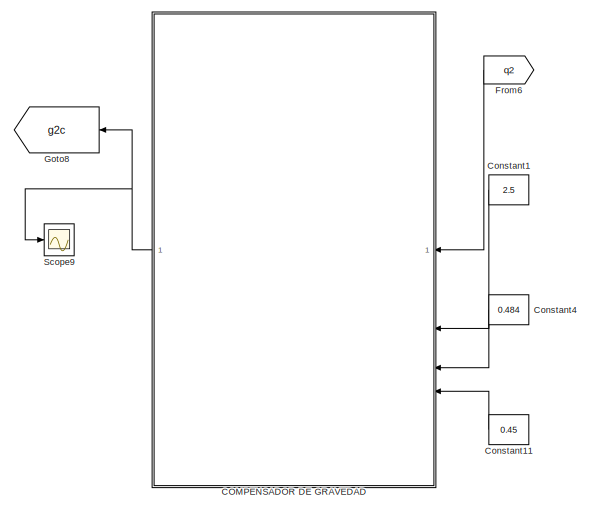
[diagram: root canvas - part 1/4, top left region]
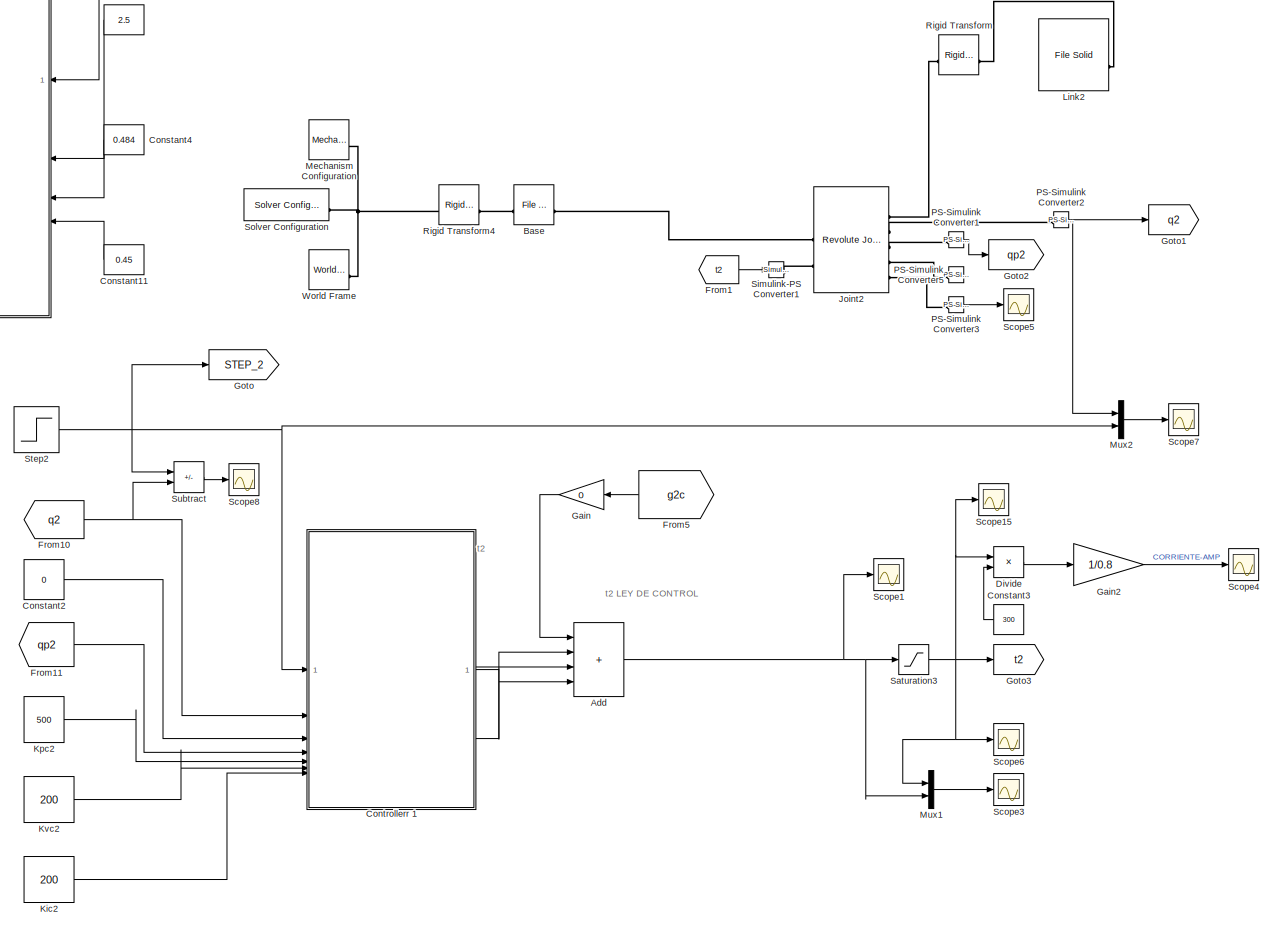
[diagram: root canvas - part 2/4, top left region]
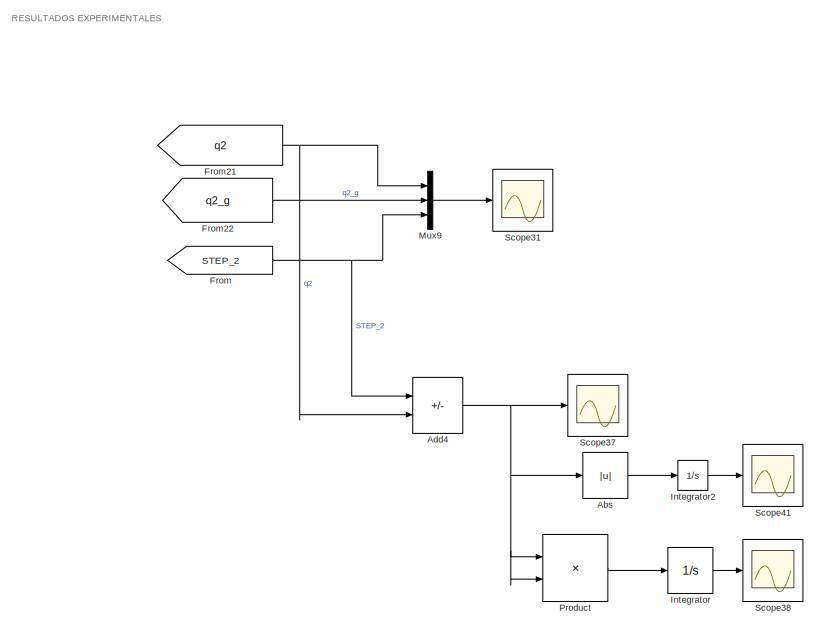
[diagram: root canvas - part 3/4, middle right region]
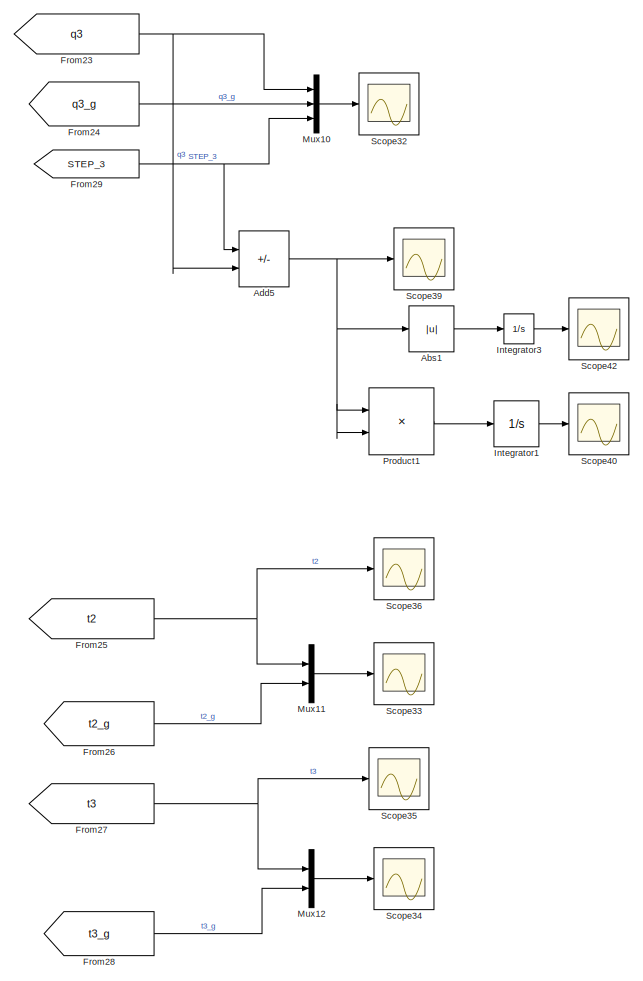
[diagram: root canvas - part 4/4, bottom right region]
MODEL slx_f197908102e9
KIND model
CONFIG AbsTol = auto
CONFIG EnableMultiTasking = off
CONFIG FixedStep = auto
CONFIG MaxStep = auto
CONFIG MinStep = auto
CONFIG RelTol = 1e-3
CONFIG SampleTimeConstraint = Unconstrained
CONFIG SolverName = VariableStepAuto
CONFIG StartTime = 0.0
CONFIG StopTime = 5
BLOCK [Abs] Abs
  SaturateOnIntegerOverflow = off
BLOCK [Abs] Abs1
  SaturateOnIntegerOverflow = off
BLOCK [Sum] Add
  IconShape = rectangular
  Inputs = ++++
BLOCK [Sum] Add4
  IconShape = rectangular
  Inputs = +-
BLOCK [Sum] Add5
  IconShape = rectangular
  Inputs = +-
BLOCK [Reference] Base  REF=sm_lib/Body Elements/File Solid
  SourceBlock = sm_lib/Body Elements/File Solid
  SourceType = File Solid
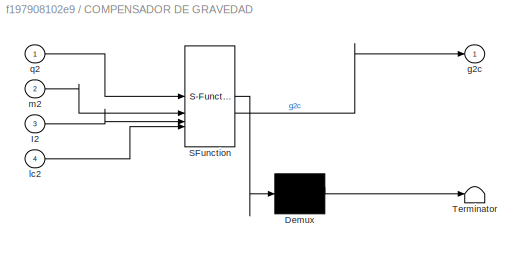
BLOCK [SubSystem] COMPENSADOR DE GRAVEDAD
  ErrorFcn = Stateflow.Translate.translate
  PermitHierarchicalResolution = ExplicitOnly
  SFBlockType = MATLAB Function
  TreatAsAtomicUnit = on
BLOCK [Demux] COMPENSADOR DE GRAVEDAD/ Demux 
  Outputs = 1
BLOCK [S-Function] COMPENSADOR DE GRAVEDAD/ SFunction 
  EnableBusSupport = on
  FunctionName = sf_sfun
  PortCounts = [4 2]
  SFcnIsStateOwnerBlock = off
  SFunctionDeploymentMode = off
  Tag = Stateflow S-Function 1
BLOCK [Terminator] COMPENSADOR DE GRAVEDAD/ Terminator 
BLOCK [Inport] COMPENSADOR DE GRAVEDAD/I2
  Port = 3
BLOCK [Outport] COMPENSADOR DE GRAVEDAD/g2c
  VectorParamsAs1DForOutWhenUnconnected = off
BLOCK [Inport] COMPENSADOR DE GRAVEDAD/lc2
  Port = 4
BLOCK [Inport] COMPENSADOR DE GRAVEDAD/m2
  Port = 2
BLOCK [Inport] COMPENSADOR DE GRAVEDAD/q2
BLOCK [Constant] Constant1
  Value = 2.5
BLOCK [Constant] Constant11
  Value = 0.45
BLOCK [Constant] Constant2
  Value = 0
BLOCK [Constant] Constant3
  Value = 300
BLOCK [Constant] Constant4
  Value = 0.484
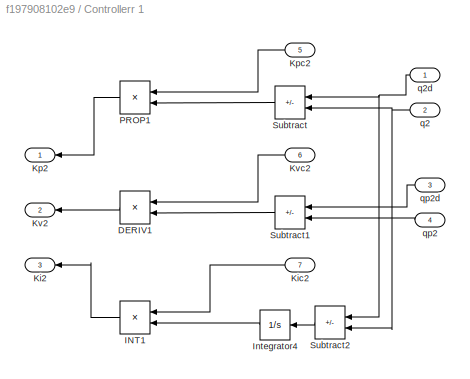
BLOCK [SubSystem] Controllerr 1
BLOCK [Product] Controllerr 1/DERIV1
BLOCK [Product] Controllerr 1/INT1
BLOCK [Integrator] Controllerr 1/Integrator4
BLOCK [Outport] Controllerr 1/Ki2
  Port = 3
  VectorParamsAs1DForOutWhenUnconnected = off
BLOCK [Inport] Controllerr 1/Kic2
  Port = 7
BLOCK [Outport] Controllerr 1/Kp2
  VectorParamsAs1DForOutWhenUnconnected = off
BLOCK [Inport] Controllerr 1/Kpc2
  Port = 5
BLOCK [Outport] Controllerr 1/Kv2
  Port = 2
  VectorParamsAs1DForOutWhenUnconnected = off
BLOCK [Inport] Controllerr 1/Kvc2
  Port = 6
BLOCK [Product] Controllerr 1/PROP1
BLOCK [Sum] Controllerr 1/Subtract
  IconShape = rectangular
  Inputs = +-
BLOCK [Sum] Controllerr 1/Subtract1
  IconShape = rectangular
  Inputs = +-
BLOCK [Sum] Controllerr 1/Subtract2
  IconShape = rectangular
  Inputs = +-
BLOCK [Inport] Controllerr 1/q2
  Port = 2
BLOCK [Inport] Controllerr 1/q2d
BLOCK [Inport] Controllerr 1/qp2
  Port = 4
BLOCK [Inport] Controllerr 1/qp2d
  Port = 3
BLOCK [Product] Divide
  Inputs = */
BLOCK [From] From
  GotoTag = STEP_2
BLOCK [From] From1
  GotoTag = t2
BLOCK [From] From10
  GotoTag = q2
BLOCK [From] From11
  GotoTag = qp2
BLOCK [From] From21
  GotoTag = q2
BLOCK [From] From22
  GotoTag = q2_g
BLOCK [From] From23
  GotoTag = q3
BLOCK [From] From24
  GotoTag = q3_g
BLOCK [From] From25
  GotoTag = t2
BLOCK [From] From26
  GotoTag = t2_g
BLOCK [From] From27
  GotoTag = t3
BLOCK [From] From28
  GotoTag = t3_g
BLOCK [From] From29
  GotoTag = STEP_3
BLOCK [From] From5
  GotoTag = g2c
BLOCK [From] From6
  GotoTag = q2
BLOCK [Gain] Gain
  Gain = 0
BLOCK [Gain] Gain2
  Gain = 1/0.8
BLOCK [Goto] Goto
  GotoTag = STEP_2
BLOCK [Goto] Goto1
  GotoTag = q2
BLOCK [Goto] Goto2
  GotoTag = qp2
BLOCK [Goto] Goto3
  GotoTag = t2
BLOCK [Goto] Goto8
  GotoTag = g2c
BLOCK [Integrator] Integrator
BLOCK [Integrator] Integrator1
BLOCK [Integrator] Integrator2
BLOCK [Integrator] Integrator3
BLOCK [Reference] Joint2  REF=sm_lib/Joints/Revolute Joint
  SourceBlock = sm_lib/Joints/Revolute Joint
  SourceType = Revolute Joint
BLOCK [Constant] Kic2
  Value = 200
BLOCK [Constant] Kpc2
  Value = 500
BLOCK [Constant] Kvc2
  Value = 200
BLOCK [Reference] Link2  REF=sm_lib/Body Elements/File Solid
  SourceBlock = sm_lib/Body Elements/File Solid
  SourceType = File Solid
BLOCK [Reference] Mechanism Configuration  REF=sm_lib/Utilities/Mechanism
Configuration
  SourceBlock = sm_lib/Utilities/Mechanism\nConfiguration
  SourceType = Mechanism\nConfiguration
BLOCK [Mux] Mux1
  DisplayOption = bar
  Inputs = 2
BLOCK [Mux] Mux10
  DisplayOption = bar
  Inputs = 3
BLOCK [Mux] Mux11
  DisplayOption = bar
  Inputs = 2
BLOCK [Mux] Mux12
  DisplayOption = bar
  Inputs = 2
BLOCK [Mux] Mux2
  DisplayOption = bar
  Inputs = 2
BLOCK [Mux] Mux9
  DisplayOption = bar
  Inputs = 3
BLOCK [Reference] PS-Simulink Converter1  REF=nesl_utility/PS-Simulink
Converter
  SourceBlock = nesl_utility/PS-Simulink\nConverter
  SourceType = PS-Simulink\nConverter
BLOCK [Reference] PS-Simulink Converter2  REF=nesl_utility/PS-Simulink
Converter
  SourceBlock = nesl_utility/PS-Simulink\nConverter
  SourceType = PS-Simulink\nConverter
BLOCK [Reference] PS-Simulink Converter3  REF=nesl_utility/PS-Simulink
Converter
  SourceBlock = nesl_utility/PS-Simulink\nConverter
  SourceType = PS-Simulink\nConverter
BLOCK [Reference] PS-Simulink Converter5  REF=nesl_utility/PS-Simulink
Converter
  SourceBlock = nesl_utility/PS-Simulink\nConverter
  SourceType = PS-Simulink\nConverter
BLOCK [Product] Product
BLOCK [Product] Product1
BLOCK [Reference] Rigid Transform  REF=sm_lib/Frames and
Transforms/Rigid
Transform
  SourceBlock = sm_lib/Frames and\nTransforms/Rigid\nTransform
  SourceType = Rigid\nTransform
BLOCK [Reference] Rigid Transform4  REF=sm_lib/Frames and
Transforms/Rigid
Transform
  SourceBlock = sm_lib/Frames and\nTransforms/Rigid\nTransform
  SourceType = Rigid\nTransform
BLOCK [Saturate] Saturation3
  LowerLimit = -1290
  UpperLimit = 1290
BLOCK [Scope] Scope1
  Floating = off
  NameLocation = top
  NumInputPorts = 1
  ScopeSpecificationString = Simulink.scopes.TimeScopeBlockCfg('CurrentConfiguration', extmgr.ConfigurationSet(extmgr.Configuration('Core','General UI',true),extmgr.Configuration('Core','Source UI',true),extmgr.Configuration('Sources','WiredSimulink',true,'DataLoggingVariableName','ScopeData4'),extmgr.Configuration('Visuals','Time Domain',true,'SerializedDisplays',{struct('MinYLimReal','-397.85834','MaxYLimReal','480.53879','...<+1801ch>
BLOCK [Scope] Scope15
  Floating = off
  NumInputPorts = 1
  ScopeSpecificationString = Simulink.scopes.TimeScopeBlockCfg('CurrentConfiguration', extmgr.ConfigurationSet(extmgr.Configuration('Core','General UI',true),extmgr.Configuration('Core','Source UI',true),extmgr.Configuration('Sources','WiredSimulink',true,'DataLoggingVariableName','ScopeData2'),extmgr.Configuration('Visuals','Time Domain',true,'SerializedDisplays',{struct('MinYLimReal','-1610.28681','MaxYLimReal','8032.90239'...<+1825ch>
BLOCK [Scope] Scope3
  Floating = off
  NameLocation = top
  NumInputPorts = 1
  ScopeSpecificationString = Simulink.scopes.TimeScopeBlockCfg('CurrentConfiguration', extmgr.ConfigurationSet(extmgr.Configuration('Core','General UI',true),extmgr.Configuration('Core','Source UI',true),extmgr.Configuration('Sources','WiredSimulink',true,'DataLoggingVariableName','ScopeData1'),extmgr.Configuration('Visuals','Time Domain',true,'SerializedDisplays',{struct('MinYLimReal','-859.74283','MaxYLimReal','8822.17324',...<+1741ch>
BLOCK [Scope] Scope31
  Floating = off
  NameLocation = top
  NumInputPorts = 1
  ScopeSpecificationString = Simulink.scopes.TimeScopeBlockCfg('CurrentConfiguration', extmgr.ConfigurationSet(extmgr.Configuration('Core','General UI',true),extmgr.Configuration('Core','Source UI',true),extmgr.Configuration('Sources','WiredSimulink',true,'DataLoggingVariableName','ScopeData16'),extmgr.Configuration('Visuals','Time Domain',true,'SerializedDisplays',{struct('MinYLimReal','-0.10311','MaxYLimReal','0.92801','YLa...<+2058ch>
BLOCK [Scope] Scope32
  Floating = off
  NameLocation = top
  NumInputPorts = 1
  ScopeSpecificationString = Simulink.scopes.TimeScopeBlockCfg('CurrentConfiguration', extmgr.ConfigurationSet(extmgr.Configuration('Core','General UI',true),extmgr.Configuration('Core','Source UI',true),extmgr.Configuration('Sources','WiredSimulink',true,'DataLoggingVariableName','ScopeData17'),extmgr.Configuration('Visuals','Time Domain',true,'SerializedDisplays',{struct('MinYLimReal','-0.89961','MaxYLimReal','0.09996','YLa...<+2058ch>
BLOCK [Scope] Scope33
  Floating = off
  NameLocation = top
  NumInputPorts = 1
  ScopeSpecificationString = Simulink.scopes.TimeScopeBlockCfg('CurrentConfiguration', extmgr.ConfigurationSet(extmgr.Configuration('Core','General UI',true),extmgr.Configuration('Core','Source UI',true),extmgr.Configuration('Sources','WiredSimulink',true,'DataLoggingVariableName','ScopeData18'),extmgr.Configuration('Visuals','Time Domain',true,'SerializedDisplays',{struct('MinYLimReal','-604.72389','MaxYLimReal','6175.84393'...<+1983ch>
BLOCK [Scope] Scope34
  Floating = off
  NameLocation = top
  NumInputPorts = 1
  ScopeSpecificationString = Simulink.scopes.TimeScopeBlockCfg('CurrentConfiguration', extmgr.ConfigurationSet(extmgr.Configuration('Core','General UI',true),extmgr.Configuration('Core','Source UI',true),extmgr.Configuration('Sources','WiredSimulink',true,'DataLoggingVariableName','ScopeData19'),extmgr.Configuration('Visuals','Time Domain',true,'SerializedDisplays',{struct('MinYLimReal','-460.00000','MaxYLimReal','460.00000',...<+2037ch>
BLOCK [Scope] Scope35
  Floating = off
  NameLocation = top
  NumInputPorts = 1
  ScopeSpecificationString = Simulink.scopes.TimeScopeBlockCfg('CurrentConfiguration', extmgr.ConfigurationSet(extmgr.Configuration('Core','General UI',true),extmgr.Configuration('Core','Source UI',true),extmgr.Configuration('Sources','WiredSimulink',true,'DataLoggingVariableName','ScopeData20'),extmgr.Configuration('Visuals','Time Domain',true,'SerializedDisplays',{struct('MinYLimReal','-460.00000','MaxYLimReal','460.00000',...<+1923ch>
BLOCK [Scope] Scope36
  Floating = off
  NameLocation = top
  NumInputPorts = 1
  ScopeSpecificationString = Simulink.scopes.TimeScopeBlockCfg('CurrentConfiguration', extmgr.ConfigurationSet(extmgr.Configuration('Core','General UI',true),extmgr.Configuration('Core','Source UI',true),extmgr.Configuration('Sources','WiredSimulink',true,'DataLoggingVariableName','ScopeData21'),extmgr.Configuration('Visuals','Time Domain',true,'SerializedDisplays',{struct('MinYLimReal','75.75487','MaxYLimReal','402.6939','YL...<+1930ch>
BLOCK [Scope] Scope37
  Floating = off
  NameLocation = top
  NumInputPorts = 1
  ScopeSpecificationString = Simulink.scopes.TimeScopeBlockCfg('CurrentConfiguration', extmgr.ConfigurationSet(extmgr.Configuration('Core','General UI',true),extmgr.Configuration('Core','Source UI',true),extmgr.Configuration('Sources','WiredSimulink',true,'DataLoggingVariableName','ScopeData22'),extmgr.Configuration('Visuals','Time Domain',true,'SerializedDisplays',{struct('MinYLimReal','-0.14305','MaxYLimReal','0.88856','YLa...<+2101ch>
BLOCK [Scope] Scope38
  Floating = off
  NameLocation = top
  NumInputPorts = 1
  ScopeSpecificationString = Simulink.scopes.TimeScopeBlockCfg('CurrentConfiguration', extmgr.ConfigurationSet(extmgr.Configuration('Core','General UI',true),extmgr.Configuration('Core','Source UI',true),extmgr.Configuration('Sources','WiredSimulink',true,'DataLoggingVariableName','ScopeData23'),extmgr.Configuration('Visuals','Time Domain',true,'SerializedDisplays',{struct('MinYLimReal','-0.02288','MaxYLimReal','0.20595','YLa...<+2017ch>
BLOCK [Scope] Scope39
  Floating = off
  NameLocation = top
  NumInputPorts = 1
  ScopeSpecificationString = Simulink.scopes.TimeScopeBlockCfg('CurrentConfiguration', extmgr.ConfigurationSet(extmgr.Configuration('Core','General UI',true),extmgr.Configuration('Core','Source UI',true),extmgr.Configuration('Sources','WiredSimulink',true,'DataLoggingVariableName','ScopeData24'),extmgr.Configuration('Visuals','Time Domain',true,'SerializedDisplays',{struct('MinYLimReal','-0.14261','MaxYLimReal','0.88851','YLa...<+2011ch>
BLOCK [Scope] Scope4
  Floating = off
  NameLocation = top
  NumInputPorts = 1
  ScopeSpecificationString = Simulink.scopes.TimeScopeBlockCfg('CurrentConfiguration', extmgr.ConfigurationSet(extmgr.Configuration('Core','General UI',true),extmgr.Configuration('Core','Source UI',true),extmgr.Configuration('Sources','WiredSimulink',true,'DataLoggingVariableName','ScopeData2'),extmgr.Configuration('Visuals','Time Domain',true,'SerializedDisplays',{struct('MinYLimReal','-1.65774','MaxYLimReal','2.00224','YLab...<+1794ch>
BLOCK [Scope] Scope40
  Floating = off
  NameLocation = top
  NumInputPorts = 1
  ScopeSpecificationString = Simulink.scopes.TimeScopeBlockCfg('CurrentConfiguration', extmgr.ConfigurationSet(extmgr.Configuration('Core','General UI',true),extmgr.Configuration('Core','Source UI',true),extmgr.Configuration('Sources','WiredSimulink',true,'DataLoggingVariableName','ScopeData25'),extmgr.Configuration('Visuals','Time Domain',true,'SerializedDisplays',{struct('MinYLimReal','-0.02288','MaxYLimReal','0.20595','YLa...<+2017ch>
BLOCK [Scope] Scope41
  Floating = off
  NameLocation = top
  NumInputPorts = 1
  ScopeSpecificationString = Simulink.scopes.TimeScopeBlockCfg('CurrentConfiguration', extmgr.ConfigurationSet(extmgr.Configuration('Core','General UI',true),extmgr.Configuration('Core','Source UI',true),extmgr.Configuration('Sources','WiredSimulink',true,'DataLoggingVariableName','ScopeData26'),extmgr.Configuration('Visuals','Time Domain',true,'SerializedDisplays',{struct('MinYLimReal','-0.06646','MaxYLimReal','0.59816','YLa...<+2018ch>
BLOCK [Scope] Scope42
  Floating = off
  NameLocation = top
  NumInputPorts = 1
  ScopeSpecificationString = Simulink.scopes.TimeScopeBlockCfg('CurrentConfiguration', extmgr.ConfigurationSet(extmgr.Configuration('Core','General UI',true),extmgr.Configuration('Core','Source UI',true),extmgr.Configuration('Sources','WiredSimulink',true,'DataLoggingVariableName','ScopeData27'),extmgr.Configuration('Visuals','Time Domain',true,'SerializedDisplays',{struct('MinYLimReal','-0.06646','MaxYLimReal','0.59816','YLa...<+2018ch>
BLOCK [Scope] Scope5
  Floating = off
  NumInputPorts = 1
  ScopeSpecificationString = Simulink.scopes.TimeScopeBlockCfg('CurrentConfiguration', extmgr.ConfigurationSet(extmgr.Configuration('Core','General UI',true),extmgr.Configuration('Core','Source UI',true),extmgr.Configuration('Sources','WiredSimulink',true,'DataLoggingVariableName','ScopeData3'),extmgr.Configuration('Visuals','Time Domain',true,'SerializedDisplays',{struct('MinYLimReal','851.7521','MaxYLimReal','896.8557','YLa...<+1925ch>
BLOCK [Scope] Scope6
  Floating = off
  NameLocation = top
  NumInputPorts = 1
  ScopeSpecificationString = Simulink.scopes.TimeScopeBlockCfg('CurrentConfiguration', extmgr.ConfigurationSet(extmgr.Configuration('Core','General UI',true),extmgr.Configuration('Core','Source UI',true),extmgr.Configuration('Sources','WiredSimulink',true,'DataLoggingVariableName','ScopeData5'),extmgr.Configuration('Visuals','Time Domain',true,'SerializedDisplays',{struct('MinYLimReal','-301.63246','MaxYLimReal','356.35903','...<+1826ch>
BLOCK [Scope] Scope7
  Floating = off
  NameLocation = top
  NumInputPorts = 1
  ScopeSpecificationString = Simulink.scopes.TimeScopeBlockCfg('CurrentConfiguration', extmgr.ConfigurationSet(extmgr.Configuration('Core','General UI',true),extmgr.Configuration('Core','Source UI',true),extmgr.Configuration('Sources','WiredSimulink',true,'DataLoggingVariableName','ScopeData6'),extmgr.Configuration('Visuals','Time Domain',true,'SerializedDisplays',{struct('MinYLimReal','0.71643','MaxYLimReal','0.83608','YLabe...<+1860ch>
BLOCK [Scope] Scope8
  Floating = off
  NameLocation = top
  NumInputPorts = 1
  ScopeSpecificationString = Simulink.scopes.TimeScopeBlockCfg('CurrentConfiguration', extmgr.ConfigurationSet(extmgr.Configuration('Core','General UI',true),extmgr.Configuration('Core','Source UI',true),extmgr.Configuration('Sources','WiredSimulink',true,'DataLoggingVariableName','ScopeData3'),extmgr.Configuration('Visuals','Time Domain',true,'SerializedDisplays',{struct('MinYLimReal','-0.1296','MaxYLimReal','0.88706','YLabe...<+1695ch>
BLOCK [Scope] Scope9
  Floating = off
  NameLocation = top
  NumInputPorts = 1
  ScopeSpecificationString = Simulink.scopes.TimeScopeBlockCfg('CurrentConfiguration', extmgr.ConfigurationSet(extmgr.Configuration('Core','General UI',true),extmgr.Configuration('Core','Source UI',true),extmgr.Configuration('Sources','WiredSimulink',true,'DataLoggingVariableName','ScopeData1'),extmgr.Configuration('Visuals','Time Domain',true,'SerializedDisplays',{struct('MinYLimReal','-1.04713','MaxYLimReal','9.42419','YLab...<+1803ch>
BLOCK [Reference] Simulink-PS Converter1  REF=nesl_utility/Simulink-PS
Converter
  SourceBlock = nesl_utility/Simulink-PS\nConverter
  SourceType = Simulink-PS\nConverter
BLOCK [Reference] Solver Configuration  REF=nesl_utility/Solver
Configuration
  SourceBlock = nesl_utility/Solver\nConfiguration
  SourceType = Solver\nConfiguration
BLOCK [Step] Step2
  After = pi/4
  SampleTime = 0
  Time = 0
BLOCK [Sum] Subtract
  IconShape = rectangular
  Inputs = +-
BLOCK [Reference] World Frame  REF=sm_lib/Frames and
Transforms/World Frame
  SourceBlock = sm_lib/Frames and\nTransforms/World Frame
  SourceType = World Frame
ANNOTATION (root): t2
ANNOTATION (root): t 2 LEY DE CONTROL
ANNOTATION (root): RESULTADOS EXPERIMENTALES
LINE Abs1:1 -> Integrator3:1
LINE Abs:1 -> Integrator2:1
NET Add4:1 -> Abs:1, Product:1, Product:2, Scope37:1
NET Add5:1 -> Abs1:1, Product1:1, Product1:2, Scope39:1
NET Add:1 -> Mux1:2, Saturation3:1, Scope1:1
NET COMPENSADOR DE GRAVEDAD:1 -> Goto8:1, Scope9:1
LINE Constant11:1 -> COMPENSADOR DE GRAVEDAD:4
LINE Constant1:1 -> COMPENSADOR DE GRAVEDAD:2
LINE Constant2:1 -> Controllerr 1:3
LINE Constant3:1 -> Divide:2
LINE Constant4:1 -> COMPENSADOR DE GRAVEDAD:3
LINE Controllerr 1/DERIV1:1 -> Controllerr 1/Kv2:1
LINE Controllerr 1/INT1:1 -> Controllerr 1/Ki2:1
LINE Controllerr 1/Integrator4:1 -> Controllerr 1/INT1:2
LINE Controllerr 1/Kic2:1 -> Controllerr 1/INT1:1
LINE Controllerr 1/Kpc2:1 -> Controllerr 1/PROP1:1
LINE Controllerr 1/Kvc2:1 -> Controllerr 1/DERIV1:1
LINE Controllerr 1/PROP1:1 -> Controllerr 1/Kp2:1
LINE Controllerr 1/Subtract1:1 -> Controllerr 1/DERIV1:2
LINE Controllerr 1/Subtract2:1 -> Controllerr 1/Integrator4:1
LINE Controllerr 1/Subtract:1 -> Controllerr 1/PROP1:2
NET Controllerr 1/q2:1 -> Controllerr 1/Subtract2:2, Controllerr 1/Subtract:2
NET Controllerr 1/q2d:1 -> Controllerr 1/Subtract2:1, Controllerr 1/Subtract:1
LINE Controllerr 1/qp2:1 -> Controllerr 1/Subtract1:2
LINE Controllerr 1/qp2d:1 -> Controllerr 1/Subtract1:1
LINE Controllerr 1:1 -> Add:2
LINE Controllerr 1:2 -> Add:3
LINE Controllerr 1:3 -> Add:4
LINE Divide:1 -> Gain2:1
NET From10:1 -> Controllerr 1:2, Subtract:2
LINE From11:1 -> Controllerr 1:4
LINE From1:1 -> Simulink-PS Converter1:1
NET From21:1 -> Add4:2, Mux9:1
LINE From22:1 -> Mux9:2
NET From23:1 -> Add5:2, Mux10:1
LINE From24:1 -> Mux10:2
NET From25:1 -> Mux11:1, Scope36:1
LINE From26:1 -> Mux11:2
NET From27:1 -> Mux12:1, Scope35:1
LINE From28:1 -> Mux12:2
NET From29:1 -> Add5:1, Mux10:3
LINE From5:1 -> Gain:1
LINE From6:1 -> COMPENSADOR DE GRAVEDAD:1
NET From:1 -> Add4:1, Mux9:3
LINE Gain2:1 -> Scope4:1
LINE Gain:1 -> Add:1
LINE Integrator1:1 -> Scope40:1
LINE Integrator2:1 -> Scope41:1
LINE Integrator3:1 -> Scope42:1
LINE Integrator:1 -> Scope38:1
LINE Kic2:1 -> Controllerr 1:7
LINE Kpc2:1 -> Controllerr 1:5
LINE Kvc2:1 -> Controllerr 1:6
LINE Mux10:1 -> Scope32:1
LINE Mux11:1 -> Scope33:1
LINE Mux12:1 -> Scope34:1
LINE Mux1:1 -> Scope3:1
LINE Mux2:1 -> Scope7:1
LINE Mux9:1 -> Scope31:1
LINE PS-Simulink Converter1:1 -> Goto2:1
NET PS-Simulink Converter2:1 -> Goto1:1, Mux2:1
LINE PS-Simulink Converter3:1 -> Scope5:1
LINE Product1:1 -> Integrator1:1
LINE Product:1 -> Integrator:1
NET Saturation3:1 -> Divide:1, Goto3:1, Mux1:1, Scope15:1, Scope6:1
NET Step2:1 -> Controllerr 1:1, Goto:1, Mux2:2, Subtract:1
LINE Subtract:1 -> Scope8:1
PLINE Base:LConn1 -- Joint2:LConn1
PLINE Base:RConn1 -- Rigid Transform4:LConn1
PLINE Joint2:LConn2 -- Simulink-PS Converter1:RConn1
PLINE Joint2:RConn1 -- Rigid Transform:RConn1
PLINE Joint2:RConn2 -- PS-Simulink Converter2:LConn1
PLINE Joint2:RConn3 -- PS-Simulink Converter1:LConn1
PLINE Joint2:RConn4 -- PS-Simulink Converter5:LConn1
PLINE Joint2:RConn5 -- PS-Simulink Converter3:LConn1
PLINE Link2:LConn1 -- Rigid Transform:LConn1
PNET net1: Mechanism Configuration:RConn1 -- Rigid Transform4:RConn1 -- Solver Configuration:RConn1 -- World Frame:RConn1
note: NET lines group one-source signal fan-out (src -> all destinations, sorted); 1:1 wires keep LINE; PNET lines group multi-terminal physical nets as a canonical sorted terminal list (undirected conserving connections); 2-terminal nets keep the pairwise PLINE form
CHART COMPENSADOR DE GRAVEDAD states=1 transitions=1
  STATE_LABEL 'eML_blk_kernel()'
  STATE_LABEL "SCRIPT:\nfunction g2c  = g(q2, m2, I2, lc2)\n\n% Parametros del robot\n%m2=23.902; m3=3.88;\n%L2=0.45; L3=0.45; lc2=0.091;lc3=0.0229;\n%I2=1.266; I3=0.093;\n\ng2c=(m2*lc2)*9.8*sin(q2);\n%G=[g2c g3c]';\n\n%gc = [g2c;g3c];\n"
CHART  states=0 transitions=0
